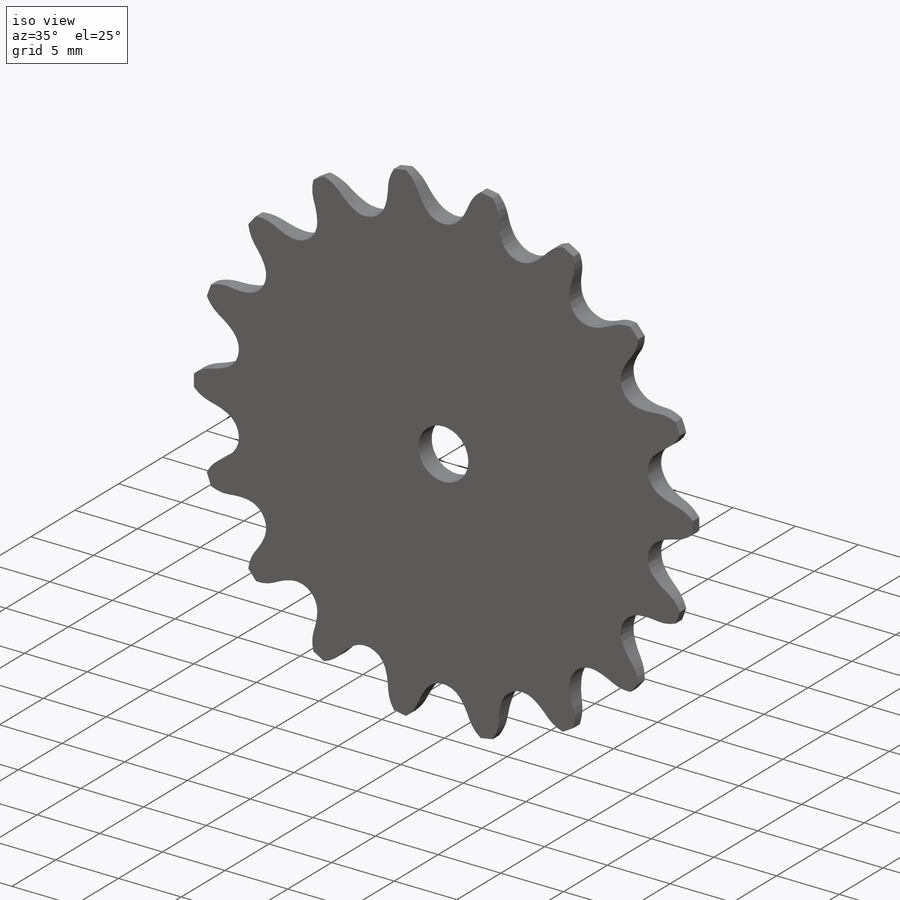
[diagram: iso view]
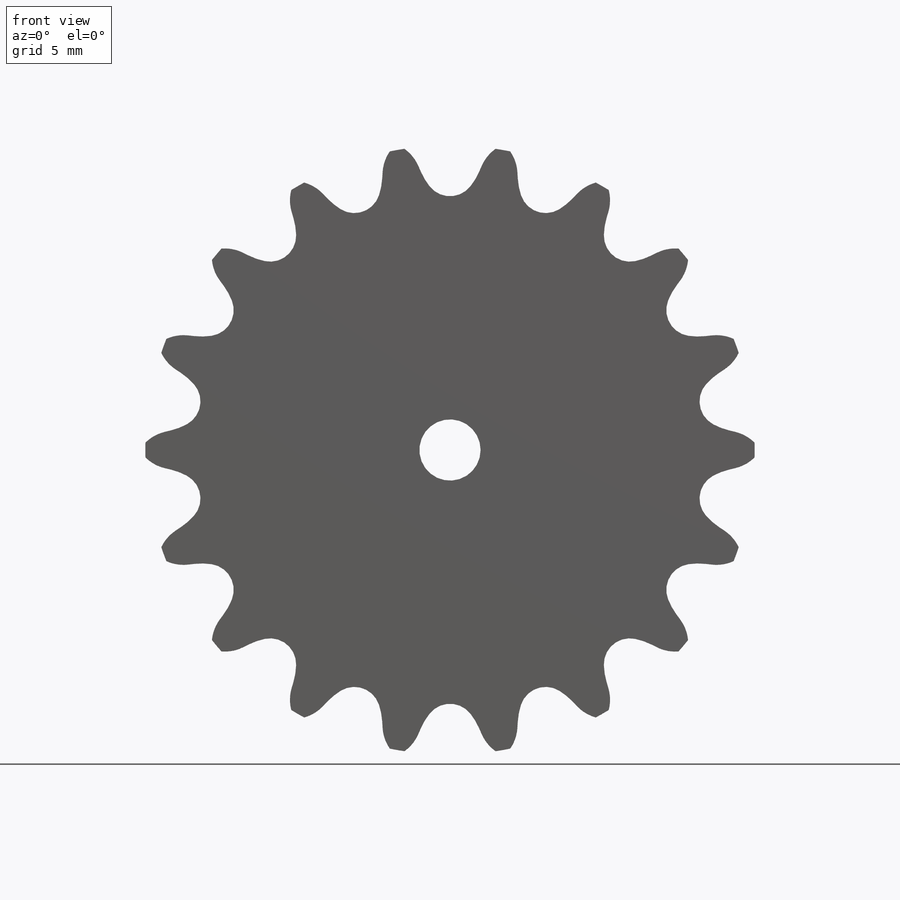
[diagram: front view]
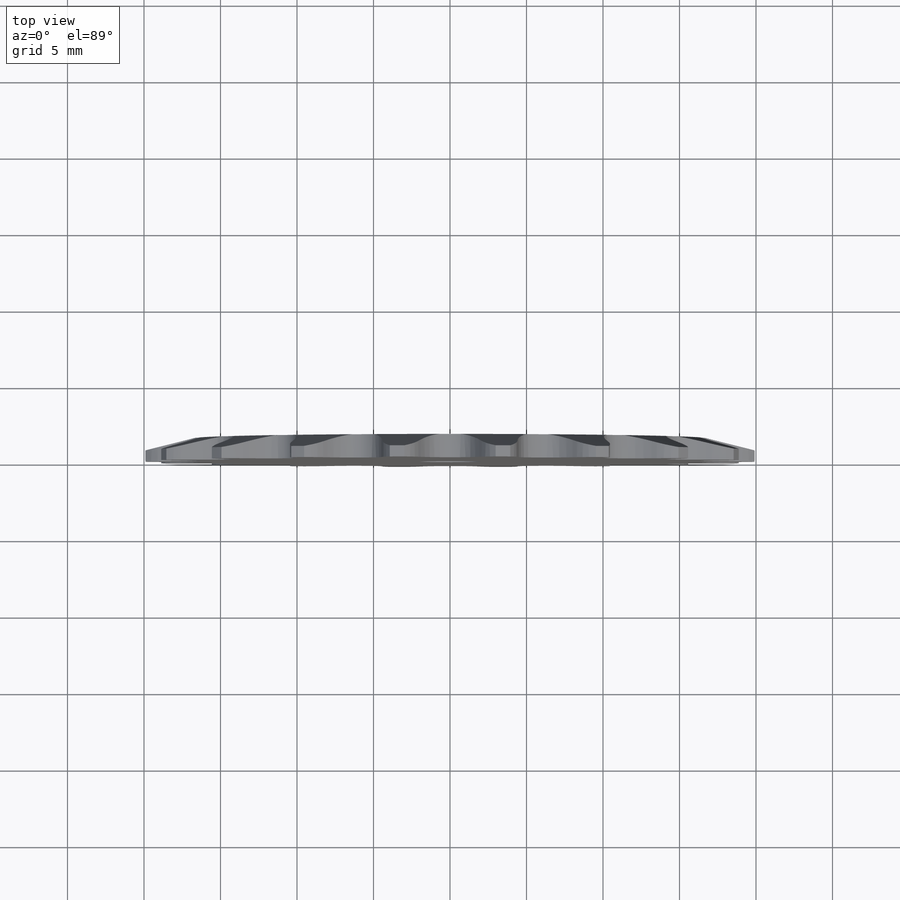
[diagram: top view]
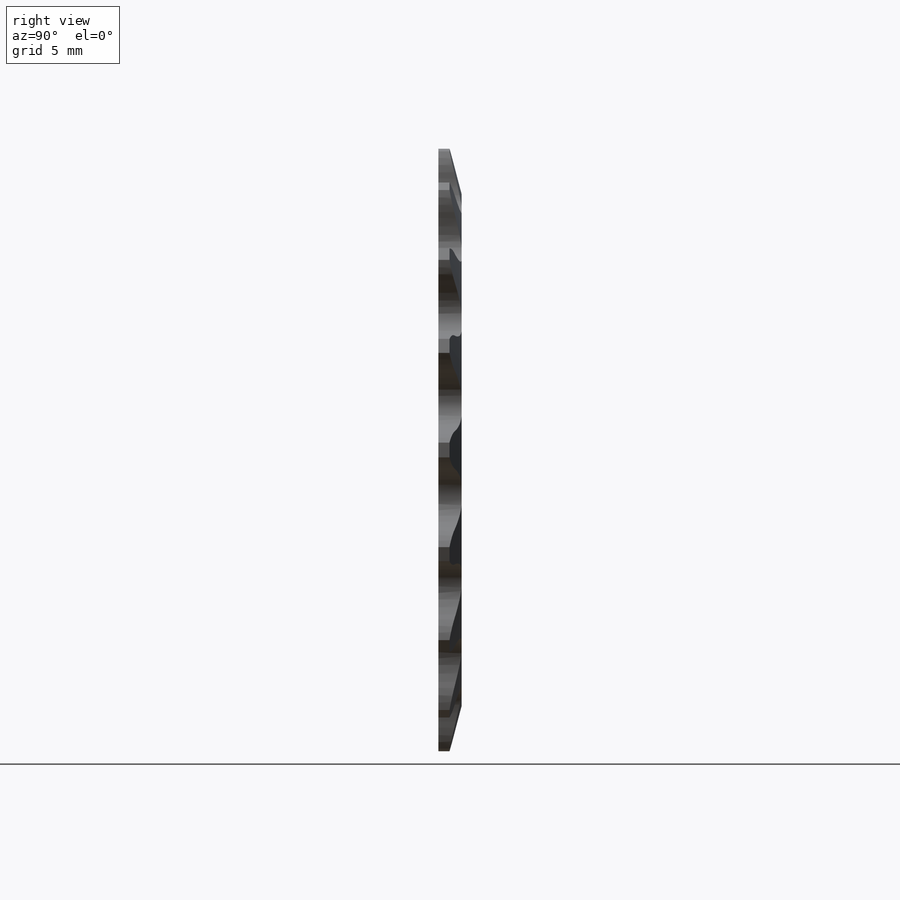
[diagram: right view]
SOLIDWORKS PART (.sldprt)
format: sldprt  version: not decoded by parser v0  size: 438,272 bytes
history: native  units: mm
features: sketch x6, cut_extrude x3, material x1, revolve x1, pattern_circular x1 (+11 scaffold rows collapsed)
feature tree (23):
  scaffold x11  (default folders/planes/origin — collapsed)
  material  "Material <not specified>"
  sketch  "Sprocket-BaseSketch"  dims[Hub Surface=1.397mm RightSide (1)=~0.79375mm RightSide (2)=3.175mm OD=~19.91132mm LeftSide (1)=~0.79375mm LeftSide (2)=3.175mm Tooth Width=2.794mm]
  revolve  "25 (04C) ANSI (ISO) Chain Number, 1.440in P.D."  Angle=360deg
  sketch  "Tooth-Sketch"
  cut_extrude  "Tooth-Cut, Number of teeth: 18"  Depth=25.4mm
  pattern_circular  "Tooth Pattern, 18 / 18"  Count=18 Angle=20deg
  sketch  "Sketch3"  dims[Hub Mounting=1.397mm Hub OD=14.2875mm Hub Width=9.906mm]
  sketch  "Sketch4"  dims[D1=4.0mm]
  cut_extrude  "Cut-Extrude1"  [1 undecoded]
  sketch  "Sketch5"  dims[D1=~39.82264mm]
  sketch  "Sketch7"
  cut_extrude  "Cut-Extrude2"  Depth=1.27mm
decode coverage: 8 of 11 modeling features carry decoded parameters
note: ~ marks probable driven/reference dimensions
note: 1 parameter value undecoded
note: suppression state not decoded; provenance and decode notes live in map.json
